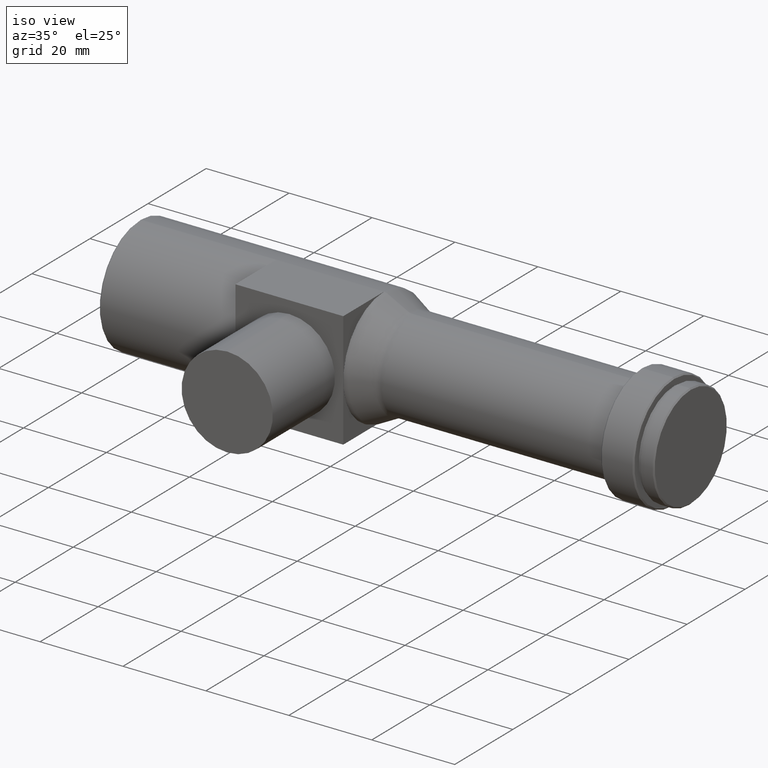
[diagram: clean part render]
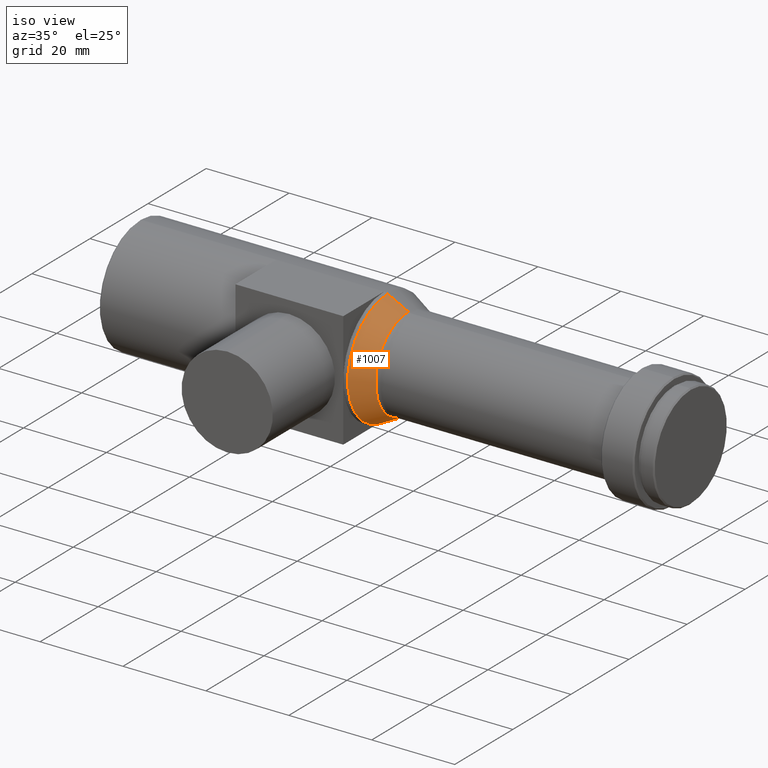
[diagram: same view with one face highlighted and labeled with its STEP entity id]
A machine part, iso view. The second image highlights one B-rep face of the part: STEP entity #1007.
In plain terms, the highlighted conical surface has half-angle 27.35 deg.
Its self-contained STEP definition (entity closure, byte-faithful):
#11 = ORIENTED_EDGE ( 'NONE', *, *, #559, .F. ) ;
#16 = LINE ( 'NONE', #903, #902 ) ;
#83 = EDGE_LOOP ( 'NONE', ( #955, #804, #910, #11 ) ) ;
#103 = DIRECTION ( 'NONE',  ( 0.0000000000000000000, 0.0000000000000000000, 1.000000000000000000 ) ) ;
#107 = CIRCLE ( 'NONE', #641, 13.77643528631190000 ) ;
#129 = CARTESIAN_POINT ( 'NONE',  ( 64.76777488686968800, 0.0000000000000000000, 11.22356471368810000 ) ) ;
#147 = DIRECTION ( 'NONE',  ( -1.000000000000000000, -0.0000000000000000000, -0.0000000000000000000 ) ) ;
#161 = VERTEX_POINT ( 'NONE', #1072 ) ;
#208 = DIRECTION ( 'NONE',  ( -1.000000000000000000, -0.0000000000000000000, -0.0000000000000000000 ) ) ;
#235 = AXIS2_PLACEMENT_3D ( 'NONE', #490, #147, #498 ) ;
#282 = VECTOR ( 'NONE', #732, 1000.000000000000000 ) ;
#300 = CARTESIAN_POINT ( 'NONE',  ( 59.83222511313034200, 1.700816128255273400E-015, -13.77643528631190000 ) ) ;
#339 = CONICAL_SURFACE ( 'NONE', #972, 11.22356471368810000, 0.4773453823736718000 ) ;
#366 = CARTESIAN_POINT ( 'NONE',  ( 64.76777488686968800, 1.530808498934191500E-015, -11.22356471368810000 ) ) ;
#384 = DIRECTION ( 'NONE',  ( -0.8882176431559488700, 5.626308070536922400E-017, -0.4594229188737665200 ) ) ;
#397 = CIRCLE ( 'NONE', #235, 11.22356471368810000 ) ;
#440 = FACE_OUTER_BOUND ( 'NONE', #83, .T. ) ;
#460 = DIRECTION ( 'NONE',  ( 0.0000000000000000000, 0.0000000000000000000, 1.000000000000000000 ) ) ;
#461 = CARTESIAN_POINT ( 'NONE',  ( 59.83222511313034200, 0.0000000000000000000, 0.0000000000000000000 ) ) ;
#490 = CARTESIAN_POINT ( 'NONE',  ( 64.76777488686968800, 0.0000000000000000000, 0.0000000000000000000 ) ) ;
#498 = DIRECTION ( 'NONE',  ( 0.0000000000000000000, 0.0000000000000000000, 1.000000000000000000 ) ) ;
#542 = VERTEX_POINT ( 'NONE', #300 ) ;
#559 = EDGE_CURVE ( 'NONE', #542, #578, #107, .T. ) ;
#578 = VERTEX_POINT ( 'NONE', #898 ) ;
#624 = EDGE_CURVE ( 'NONE', #1005, #542, #16, .T. ) ;
#641 = AXIS2_PLACEMENT_3D ( 'NONE', #461, #208, #460 ) ;
#674 = EDGE_CURVE ( 'NONE', #161, #578, #1024, .T. ) ;
#732 = DIRECTION ( 'NONE',  ( -0.8882176431559488700, 0.0000000000000000000, 0.4594229188737665200 ) ) ;
#800 = DIRECTION ( 'NONE',  ( -1.000000000000000000, -0.0000000000000000000, -0.0000000000000000000 ) ) ;
#804 = ORIENTED_EDGE ( 'NONE', *, *, #823, .T. ) ;
#823 = EDGE_CURVE ( 'NONE', #1005, #161, #397, .T. ) ;
#898 = CARTESIAN_POINT ( 'NONE',  ( 59.83222511313034200, 0.0000000000000000000, 13.77643528631190000 ) ) ;
#902 = VECTOR ( 'NONE', #384, 1000.000000000000000 ) ;
#903 = CARTESIAN_POINT ( 'NONE',  ( 64.76777488686968800, 1.374490260164131100E-015, -11.22356471368810000 ) ) ;
#910 = ORIENTED_EDGE ( 'NONE', *, *, #674, .T. ) ;
#955 = ORIENTED_EDGE ( 'NONE', *, *, #624, .F. ) ;
#972 = AXIS2_PLACEMENT_3D ( 'NONE', #1045, #800, #103 ) ;
#1005 = VERTEX_POINT ( 'NONE', #366 ) ;
#1007 = ADVANCED_FACE ( 'NONE', ( #440 ), #339, .T. ) ;
#1024 = LINE ( 'NONE', #129, #282 ) ;
#1045 = CARTESIAN_POINT ( 'NONE',  ( 64.76777488686968800, 0.0000000000000000000, 0.0000000000000000000 ) ) ;
#1072 = CARTESIAN_POINT ( 'NONE',  ( 64.76777488686968800, 0.0000000000000000000, 11.22356471368810000 ) ) ;